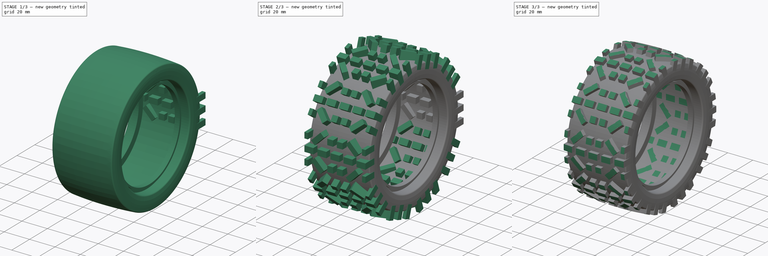
[diagram: build sequence overview — one tinted view per stage of 3, left to right]
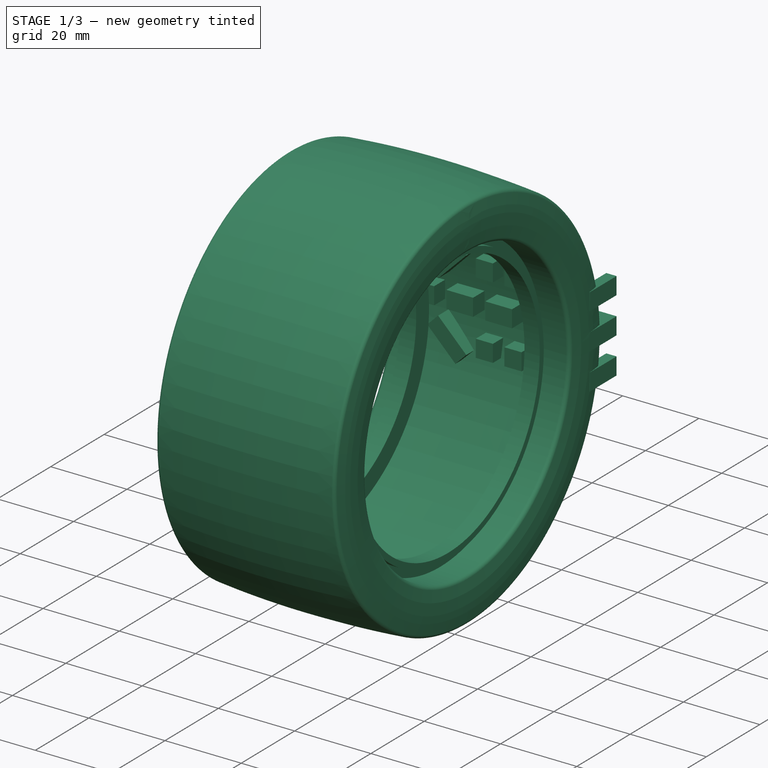
[diagram: stage 1 of 3 — iso view after this stage's code; geometry added in this stage tinted green]
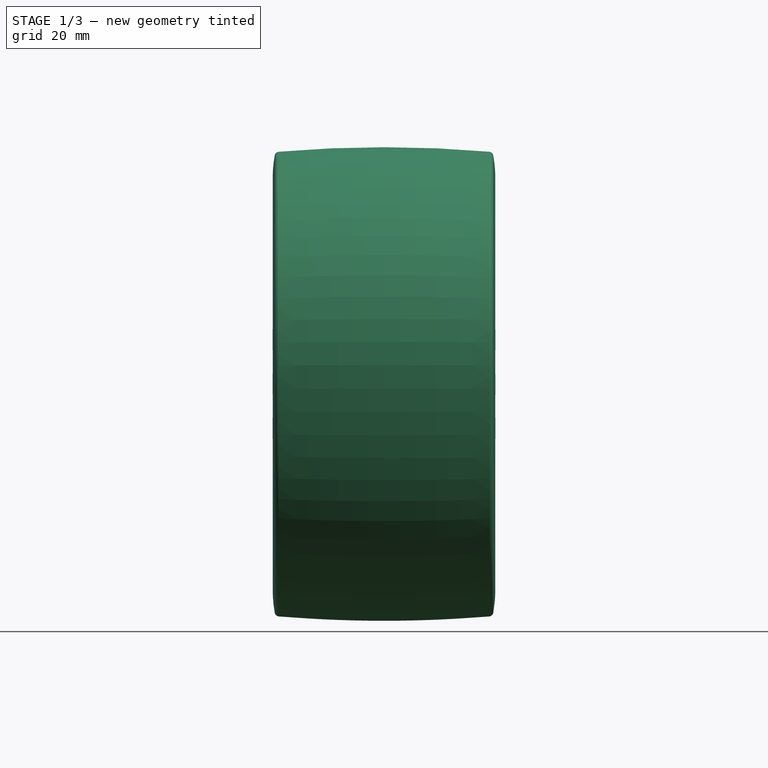
[diagram: stage 1 of 3 — front view after this stage's code; geometry added in this stage tinted green]
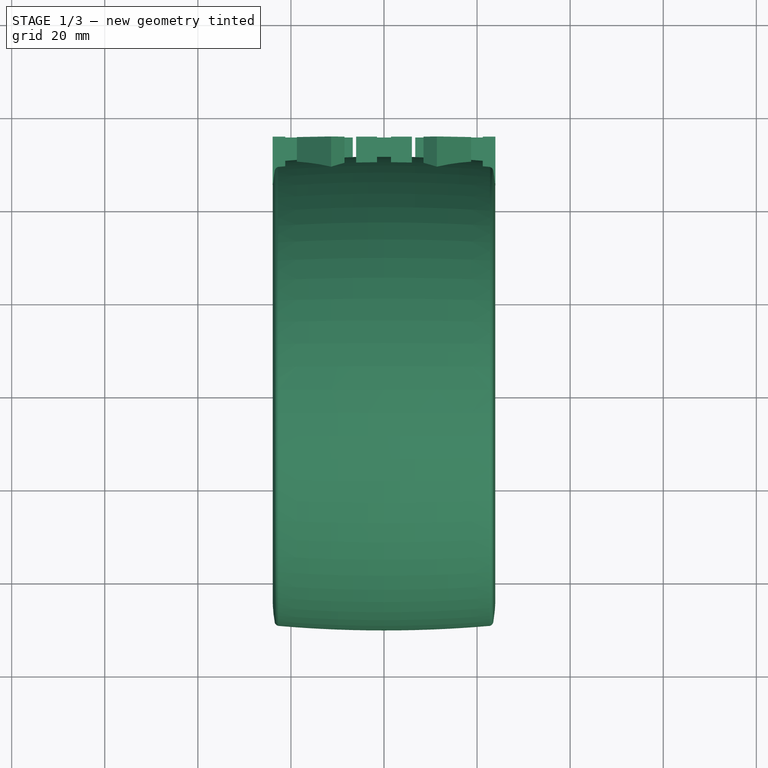
[diagram: stage 1 of 3 — top view after this stage's code; geometry added in this stage tinted green]
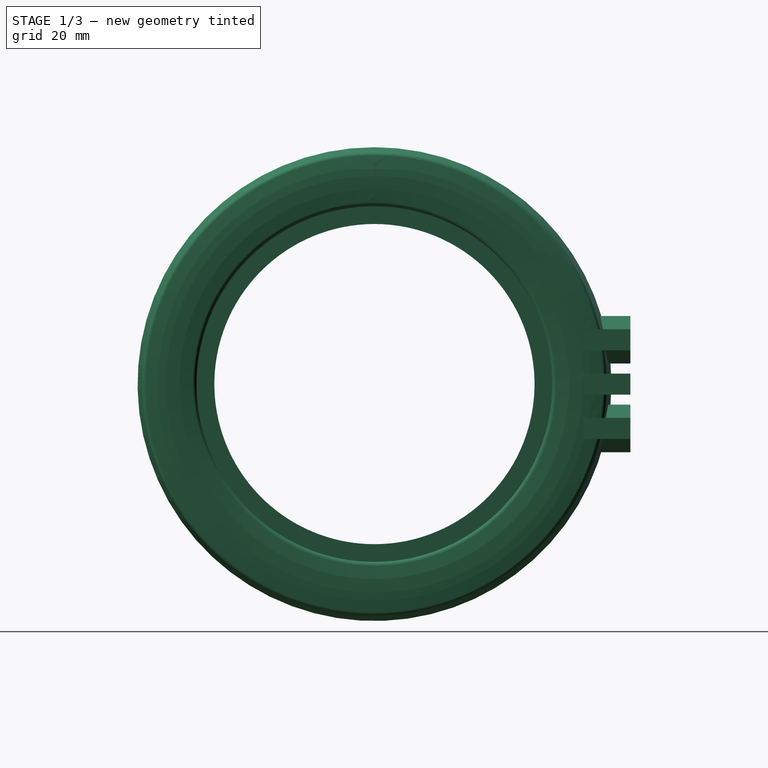
[diagram: stage 1 of 3 — right view after this stage's code; geometry added in this stage tinted green]
FCSTD DOCUMENT  (FreeCAD 0.17R13543 (Git))
Label: Razr
License: CreativeCommons Attribution-NonCommercial-ShareAlike
LicenseURL: http://creativecommons.org/licenses/by-nc-sa/4.0/
objects: Sketcher::SketchObject×4, PartDesign::Groove×2, PartDesign::Revolution×1, PartDesign::Pad×1, PartDesign::PolarPattern×1, PartDesign::Body×1
note: 14 computed .brp shape members not serialized (recipe doc carries the construction recipe); baked Part::Feature solids carry a one-line shape summary decoded from their .brp

FEATURE [Sketcher::SketchObject] Sketch
  MapMode = 5
  Placement = pos=(0,0,0) rot=(1,0,0;1.5708rad)
  Support = -> [XZ_Plane]
  sketch-geometry (31):
    g0: LineSegment StartX=-14.2 StartY=34.4 StartZ=0 EndX=-18.2 EndY=34.4 EndZ=0
    g1: LineSegment StartX=-18.2 StartY=34.4 StartZ=0 EndX=-18.2 EndY=35.9 EndZ=0
    g2: LineSegment StartX=-18.2 StartY=35.9 StartZ=0 EndX=-16.2 EndY=35.9 EndZ=0
    g3: LineSegment StartX=-16.2 StartY=35.9 StartZ=0 EndX=-16.2 EndY=38.2 EndZ=0
    g4: LineSegment StartX=-22.5 StartY=38.2 StartZ=0 EndX=-16.2 EndY=38.2 EndZ=0
    g5: LineSegment StartX=14.2 StartY=39.2 StartZ=0 EndX=14.2 EndY=34.4 EndZ=0
    g6: LineSegment StartX=14.2 StartY=34.4 StartZ=0 EndX=18.2 EndY=34.4 EndZ=0
    g7: LineSegment StartX=18.2 StartY=34.4 StartZ=0 EndX=18.2 EndY=35.9 EndZ=0
    g8: LineSegment StartX=18.2 StartY=35.9 StartZ=0 EndX=16.2 EndY=35.9 EndZ=0
    g9: LineSegment StartX=16.2 StartY=35.9 StartZ=0 EndX=16.2 EndY=38.2 EndZ=0
    g10: LineSegment StartX=16.2 StartY=38.2 StartZ=0 EndX=22.5 EndY=38.2 EndZ=0
    g11: ArcOfCircle CenterX=22.5 CenterY=39.2 CenterZ=0 NormalX=0 NormalY=0 NormalZ=1 AngleXU=0 Radius=1 StartAngle=4.71239 EndAngle=6.10867
    g12: ArcOfCircle CenterX=5.06044 CenterY=44.0596 CenterZ=0 NormalX=0 NormalY=0 NormalZ=1 AngleXU=0 Radius=28.9856 StartAngle=2.96939 EndAngle=3.31613
    g13: ArcOfCircle CenterX=0 CenterY=-213.025 CenterZ=0 NormalX=0 NormalY=0 NormalZ=1 AngleXU=0 Radius=263.925 StartAngle=1.48478 EndAngle=1.65681
    g14: ArcOfCircle CenterX=-22.5 CenterY=39.2 CenterZ=0 NormalX=0 NormalY=0 NormalZ=1 AngleXU=0 Radius=1 StartAngle=3.31613 EndAngle=4.71239
    g15: LineSegment [constr] StartX=-22.5 StartY=39.2 StartZ=0 EndX=-22.5 EndY=38.2 EndZ=0
    g16: LineSegment [constr] StartX=-23.4848 StartY=39.0264 StartZ=0 EndX=5.06044 EndY=44.0596 EndZ=0
    g17: LineSegment StartX=-14.2 StartY=34.4 StartZ=0 EndX=-14.2 EndY=39.2 EndZ=0
    g18: ArcOfCircle CenterX=-22.5 CenterY=48.9392 CenterZ=0 NormalX=0 NormalY=0 NormalZ=1 AngleXU=0 Radius=1.00028 StartAngle=1.74533 EndAngle=3.05433
    g19: GeomPoint X=0 Y=50.9 Z=0
    g20: LineSegment [constr] StartX=-22.5 StartY=48.9392 StartZ=0 EndX=-23.4965 EndY=49.0264 EndZ=0
    g21: LineSegment [constr] StartX=-22.5 StartY=48.9392 StartZ=0 EndX=-22.6737 EndY=49.9243 EndZ=0
    g22: LineSegment [constr] StartX=-22.5 StartY=48.9392 StartZ=0 EndX=-22.5 EndY=49.9392 EndZ=0
    g23: ArcOfCircle CenterX=22.5 CenterY=48.9392 CenterZ=0 NormalX=0 NormalY=0 NormalZ=1 AngleXU=0 Radius=1.00028 StartAngle=0.0872665 EndAngle=1.39626
    g24: ArcOfCircle CenterX=-5.06044 CenterY=44.0596 CenterZ=0 NormalX=0 NormalY=0 NormalZ=1 AngleXU=0 Radius=28.9856 StartAngle=6.10865 EndAngle=6.45539
    g25: ArcOfCircle CenterX=0 CenterY=-477.416 CenterZ=0 NormalX=0 NormalY=0 NormalZ=1 AngleXU=0 Radius=526.816 StartAngle=1.52807 EndAngle=1.61352
    g26: GeomPoint X=0 Y=49.4 Z=0
    g27: ArcOfCircle CenterX=-6.56044 CenterY=44.0596 CenterZ=0 NormalX=0 NormalY=0 NormalZ=1 AngleXU=0 Radius=29.464 StartAngle=6.11749 EndAngle=6.44888
    g28: LineSegment StartX=22.5 StartY=39.2 StartZ=0 EndX=14.2 EndY=39.2 EndZ=0
    g29: LineSegment StartX=-14.2 StartY=39.2 StartZ=0 EndX=-22.5 EndY=39.2 EndZ=0
    g30: ArcOfCircle CenterX=5.06044 CenterY=44.0596 CenterZ=0 NormalX=0 NormalY=0 NormalZ=1 AngleXU=0 Radius=27.9856 StartAngle=2.96706 EndAngle=3.31613
  constraints (89):
    c: Horizontal(g0)
    c: Coincident(g1,g0)
    c: Vertical(g1)
    c: Coincident(g2,g1)
    c: Horizontal(g2)
    c: Coincident(g3,g2)
    c: Horizontal(g4)
    c: DistanceY(g1,g1) = 1.5
    c: DistanceX(g2,g2) = 2
    c: DistanceY(g3,g3) = 2.3
    c: DistanceX(g2,g0) = 2
    c: DistanceX(g4,g4) = 6.3
    c: DistanceY(g-1,g0) = 34.4
    c: DistanceX(g0,g-1) = 14.2
    c: Symmetric(g5,g17,g-2)
    c: Vertical(g5)
    c: Coincident(g6,g5)
    c: Horizontal(g6)
    c: Coincident(g7,g6)
    c: Coincident(g8,g7)
    c: Horizontal(g8)
    c: Coincident(g9,g8)
    c: Vertical(g9)
    c: Coincident(g10,g9)
    c: Horizontal(g10)
    c: Vertical(g7)
    c: Symmetric(g6,g0,g-2)
    c: Symmetric(g8,g2,g-2)
    c: Symmetric(g9,g3,g-2)
    c: Coincident(g11,g10)
    c: Vertical(g11,g10)
    c: Symmetric(g10,g4,g-2)
    c: DistanceY(g12,g12) = 10
    c: PointOnObject(g13,g-2)
    c: Coincident(g14,g12)
    c: Coincident(g14,g4)
    c: Coincident(g15,g14)
    c: Coincident(g15,g4)
    c: Vertical(g15)
    c: DistanceY(g15,g15) = 1
    c: Coincident(g16,g12)
    c: PointOnObject(g14,g16)
    c: Angle(g15,g16,g14) = 1.74533
    c: Coincident(g17,g0)
    c: Vertical(g17)
    c: Coincident(g18,g12)
    c: PointOnObject(g19,g-2)
    c: PointOnObject(g19,g13)
    c: DistanceY(g4,g19) = 12.7
    c: Coincident(g18,g13)
    c: Coincident(g20,g18)
    c: Coincident(g20,g12)
    c: Coincident(g21,g18)
    c: Coincident(g21,g13)
    c: Coincident(g22,g18)
    c: PointOnObject(g22,g13)
    c: Vertical(g22)
    c: Angle(g22,g21) = 0.174533
    c: Angle(g21,g20) = 1.309
    c: Vertical(g18,g14)
    c: DistanceY(g22,g22) = 1
    c: Coincident(g12,g16)
    c: Symmetric(g13,g13,g-2)
    c: Coincident(g3,g4)
    c: Coincident(g23,g13)
    c: Symmetric(g23,g18,g-2)
    c: Symmetric(g13,g13,g-2)
    c: Symmetric(g12,g23,g-2)
    c: Coincident(g24,g23)
    c: Coincident(g24,g11)
    c: Symmetric(g24,g12,g-2)
    c: PointOnObject(g25,g-2)
    c: PointOnObject(g26,g-2)
    c: PointOnObject(g26,g25)
    c: DistanceY(g26,g19) = 1.5
    c: Symmetric(g25,g25,g-2)
    c: Coincident(g27,g25)
    c: Coincident(g27,g11)
    c: Horizontal(g24,g27)
    c: DistanceX(g27,g24) = 1.5
    c: Coincident(g28,g11)
    c: Coincident(g28,g5)
    c: Horizontal(g28)
    c: Coincident(g29,g17)
    c: Coincident(g29,g14)
    c: Horizontal(g29)
    c: Coincident(g30,g14)
    c: Coincident(g30,g25)
    c: Symmetric(g30,g24,g-2)
FEATURE [PartDesign::Revolution] Revolution
  Angle = 360
  Axis = (1,0,0)
  Base = (0,0,0)
  Placement = pos=(0,0,0) rot=(1,0,0;1.5708rad)
  Profile = -> Sketch
  ReferenceAxis = -> X_Axis
FEATURE [Sketcher::SketchObject] Sketch003
  ExternalGeometry = -> [Sketch]
  MapMode = 5
  Placement = pos=(0,0,0) rot=(1,0,0;1.5708rad)
  Support = -> [XZ_Plane]
  sketch-geometry (4):
    g0: LineSegment StartX=-22.5 StartY=39.2 StartZ=0 EndX=22.5 EndY=39.2 EndZ=0
    g1: ArcOfCircle CenterX=5.06044 CenterY=44.0596 CenterZ=0 NormalX=0 NormalY=0 NormalZ=1 AngleXU=0 Radius=27.9856 StartAngle=2.96706 EndAngle=3.31613
    g2: ArcOfCircle CenterX=-6.56044 CenterY=44.0596 CenterZ=0 NormalX=0 NormalY=0 NormalZ=1 AngleXU=0 Radius=29.464 StartAngle=6.11749 EndAngle=6.44888
    g3: ArcOfCircle CenterX=3e-12 CenterY=-477.416 CenterZ=0 NormalX=0 NormalY=0 NormalZ=1 AngleXU=0 Radius=526.816 StartAngle=1.52807 EndAngle=1.61352
  constraints (11):
    c: Coincident(g0,g-3)
    c: Coincident(g0,g-5)
    c: Coincident(g1,g-3)
    c: Coincident(g1,g0)
    c: Coincident(g1,g-4)
    c: Coincident(g2,g-5)
    c: Coincident(g2,g0)
    c: Coincident(g2,g-5)
    c: Coincident(g3,g1)
    c: Coincident(g3,g2)
    c: Tangent(g3,g-4)
FEATURE [Sketcher::SketchObject] Sketch002
  ExternalGeometry = -> [Sketch]
  MapMode = 5
  Placement = pos=(0,0,0) rot=(1,0,0;1.5708rad)
  Support = -> [XZ_Plane]
  sketch-geometry (8):
    g0: ArcOfCircle CenterX=0 CenterY=-210.025 CenterZ=0 NormalX=0 NormalY=0 NormalZ=1 AngleXU=0 Radius=263.925 StartAngle=1.47337 EndAngle=1.66823
    g1: GeomPoint X=0 Y=50.9 Z=0
    g2: GeomPoint X=0 Y=53.9 Z=0
    g3: GeomPoint X=22.6737 Y=52.9243 Z=0
    g4: LineSegment StartX=-25.6737 StartY=52.6483 StartZ=0 EndX=-25.6737 EndY=58.9 EndZ=0
    g5: LineSegment StartX=-25.6737 StartY=58.9 StartZ=0 EndX=25.6737 EndY=58.9 EndZ=0
    g6: LineSegment StartX=25.6737 StartY=58.9 StartZ=0 EndX=25.6737 EndY=52.6483 EndZ=0
    g7: GeomPoint X=0 Y=58.9 Z=0
  constraints (20):
    c: PointOnObject(g1,g-3)
    c: PointOnObject(g2,g0)
    c: PointOnObject(g2,g-2)
    c: PointOnObject(g1,g-2)
    c: DistanceY(g1,g2) = 3
    c: Symmetric(g0,g0,g-2)
    c: PointOnObject(g3,g0)
    c: Vertical(g-3,g3)
    c: DistanceY(g-3,g3) = 3
    c: Coincident(g4,g0)
    c: Vertical(g4)
    c: Coincident(g5,g4)
    c: Horizontal(g5)
    c: Coincident(g6,g5)
    c: Coincident(g6,g0)
    c: Vertical(g6)
    c: PointOnObject(g7,g5)
    c: PointOnObject(g7,g-2)
    c: DistanceY(g2,g7) = 5
    c: DistanceX(g3,g0) = 3
FEATURE [Sketcher::SketchObject] Sketch004
  ExternalGeometry = -> [Sketch]
  MapMode = 2
  Placement = pos=(0,45,0) rot=(-1,0,0;4.71239rad)
  sketch-geometry (77):
    g0: LineSegment [constr] StartX=-23.9252 StartY=-39844.3 StartZ=0 EndX=-23.9252 EndY=39844.3 EndZ=0
    g1: LineSegment [constr] StartX=23.9252 StartY=-39844.3 StartZ=0 EndX=23.9252 EndY=39844.3 EndZ=0
    g2: LineSegment StartX=-23.9252 StartY=2.26258 StartZ=0 EndX=-16.9252 EndY=2.26258 EndZ=0
    g3: LineSegment StartX=-16.9252 StartY=2.26258 StartZ=0 EndX=-16.9252 EndY=-2.26258 EndZ=0
    g4: LineSegment StartX=-16.9252 StartY=-2.26258 StartZ=0 EndX=-23.9252 EndY=-2.26258 EndZ=0
    g5: LineSegment StartX=-23.9252 StartY=-2.26258 StartZ=0 EndX=-23.9252 EndY=2.26258 EndZ=0
    g6: LineSegment [constr] StartX=-16.9252 StartY=-2.26258 StartZ=0 EndX=-13.7126 EndY=-2.26258 EndZ=0
    g7: LineSegment StartX=-13.7126 StartY=-2.26258 StartZ=0 EndX=-6.71258 EndY=-2.26258 EndZ=0
    g8: LineSegment StartX=-6.71258 StartY=-2.26258 StartZ=0 EndX=-6.71258 EndY=2.26258 EndZ=0
    g9: LineSegment StartX=-6.71258 StartY=2.26258 StartZ=0 EndX=-13.7126 EndY=2.26258 EndZ=0
    g10: LineSegment StartX=-13.7126 StartY=2.26258 StartZ=0 EndX=-13.7126 EndY=-2.26258 EndZ=0
    g11: LineSegment StartX=-3.5 StartY=-2.26258 StartZ=0 EndX=3.5 EndY=-2.26258 EndZ=0
    g12: LineSegment StartX=3.5 StartY=-2.26258 StartZ=0 EndX=3.5 EndY=2.26258 EndZ=0
    g13: LineSegment StartX=3.5 StartY=2.26258 StartZ=0 EndX=-3.5 EndY=2.26258 EndZ=0
    g14: LineSegment StartX=-3.5 StartY=2.26258 StartZ=0 EndX=-3.5 EndY=-2.26258 EndZ=0
    g15: LineSegment StartX=6.71258 StartY=-2.26258 StartZ=0 EndX=13.7126 EndY=-2.26258 EndZ=0
    g16: LineSegment StartX=13.7126 StartY=-2.26258 StartZ=0 EndX=13.7126 EndY=2.26258 EndZ=0
    g17: LineSegment StartX=13.7126 StartY=2.26258 StartZ=0 EndX=6.71258 EndY=2.26258 EndZ=0
    g18: LineSegment StartX=6.71258 StartY=2.26258 StartZ=0 EndX=6.71258 EndY=-2.26258 EndZ=0
    g19: LineSegment StartX=16.9252 StartY=-2.26258 StartZ=0 EndX=23.9252 EndY=-2.26258 EndZ=0
    g20: LineSegment StartX=23.9252 StartY=-2.26258 StartZ=0 EndX=23.9252 EndY=2.26258 EndZ=0
    g21: LineSegment StartX=23.9252 StartY=2.26258 StartZ=0 EndX=16.9252 EndY=2.26258 EndZ=0
    g22: LineSegment StartX=16.9252 StartY=2.26258 StartZ=0 EndX=16.9252 EndY=-2.26258 EndZ=0
    g23: LineSegment [constr] StartX=-6.71258 StartY=-2.26258 StartZ=0 EndX=-3.5 EndY=-2.26258 EndZ=0
    g24: LineSegment [constr] StartX=3.5 StartY=-2.26258 StartZ=0 EndX=6.71258 EndY=-2.26258 EndZ=0
    g25: LineSegment [constr] StartX=13.7126 StartY=-2.26258 StartZ=0 EndX=16.9252 EndY=-2.26258 EndZ=0
    g26: LineSegment [constr] StartX=-23.9252 StartY=7.26258 StartZ=0 EndX=23.9252 EndY=7.26258 EndZ=0
    g27: LineSegment StartX=-6 StartY=7.26258 StartZ=0 EndX=-1.5 EndY=7.26258 EndZ=0
    g28: LineSegment StartX=-1.5 StartY=7.26258 StartZ=0 EndX=-1.5 EndY=11.7877 EndZ=0
    g29: LineSegment StartX=-1.5 StartY=11.7877 StartZ=0 EndX=-6 EndY=11.7877 EndZ=0
    g30: LineSegment StartX=-6 StartY=11.7877 StartZ=0 EndX=-6 EndY=7.26258 EndZ=0
    g31: LineSegment StartX=1.5 StartY=7.26258 StartZ=0 EndX=6 EndY=7.26258 EndZ=0
    g32: LineSegment StartX=6 StartY=7.26258 StartZ=0 EndX=6 EndY=11.7877 EndZ=0
    g33: LineSegment StartX=6 StartY=11.7877 StartZ=0 EndX=1.5 EndY=11.7877 EndZ=0
    g34: LineSegment StartX=1.5 StartY=11.7877 StartZ=0 EndX=1.5 EndY=7.26258 EndZ=0
    g35: LineSegment StartX=-18.7252 StartY=7.26258 StartZ=0 EndX=-11.35 EndY=14.6377 EndZ=0
    g36: LineSegment StartX=-11.35 StartY=14.6377 StartZ=0 EndX=-8.5 EndY=11.7877 EndZ=0
    g37: LineSegment StartX=-8.5 StartY=11.7877 StartZ=0 EndX=-15.8752 EndY=4.41258 EndZ=0
    g38: LineSegment StartX=-18.7252 StartY=7.26258 StartZ=0 EndX=-15.8752 EndY=4.41258 EndZ=0
    g39: LineSegment StartX=-23.9252 StartY=7.26258 StartZ=0 EndX=-21.2252 EndY=7.26258 EndZ=0
    g40: LineSegment StartX=-21.2252 StartY=7.26258 StartZ=0 EndX=-21.2252 EndY=11.7877 EndZ=0
    g41: LineSegment StartX=-21.2252 StartY=11.7877 StartZ=0 EndX=-23.9252 EndY=11.7877 EndZ=0
    g42: LineSegment StartX=-23.9252 StartY=11.7877 StartZ=0 EndX=-23.9252 EndY=7.26258 EndZ=0
    g43: LineSegment [constr] StartX=-15.8752 StartY=4.41258 StartZ=0 EndX=-15.8752 EndY=7.26258 EndZ=0
    g44: LineSegment StartX=21.2252 StartY=7.26258 StartZ=0 EndX=23.9252 EndY=7.26258 EndZ=0
    g45: LineSegment StartX=23.9252 StartY=7.26258 StartZ=0 EndX=23.9252 EndY=11.7877 EndZ=0
    g46: LineSegment StartX=23.9252 StartY=11.7877 StartZ=0 EndX=21.2252 EndY=11.7877 EndZ=0
    g47: LineSegment StartX=21.2252 StartY=11.7877 StartZ=0 EndX=21.2252 EndY=7.26258 EndZ=0
    g48: LineSegment StartX=18.7252 StartY=7.26258 StartZ=0 EndX=11.35 EndY=14.6377 EndZ=0
    g49: LineSegment StartX=11.35 StartY=14.6377 StartZ=0 EndX=8.5 EndY=11.7877 EndZ=0
    g50: LineSegment StartX=8.5 StartY=11.7877 StartZ=0 EndX=15.8752 EndY=4.41258 EndZ=0
    g51: LineSegment StartX=15.8752 StartY=4.41258 StartZ=0 EndX=18.7252 EndY=7.26258 EndZ=0
    g52: LineSegment [constr] StartX=-23.9252 StartY=-7.26258 StartZ=0 EndX=23.9252 EndY=-7.26258 EndZ=0
    g53: LineSegment StartX=-23.9252 StartY=-7.26258 StartZ=0 EndX=-21.2252 EndY=-7.26258 EndZ=0
    g54: LineSegment StartX=-21.2252 StartY=-7.26258 StartZ=0 EndX=-21.2252 EndY=-11.7877 EndZ=0
    g55: LineSegment StartX=-21.2252 StartY=-11.7877 StartZ=0 EndX=-23.9252 EndY=-11.7877 EndZ=0
    g56: LineSegment StartX=-23.9252 StartY=-11.7877 StartZ=0 EndX=-23.9252 EndY=-7.26258 EndZ=0
    g57: LineSegment StartX=-18.7252 StartY=-7.26258 StartZ=0 EndX=-11.35 EndY=-14.6377 EndZ=0
    g58: LineSegment StartX=-11.35 StartY=-14.6377 StartZ=0 EndX=-8.5 EndY=-11.7877 EndZ=0
    g59: LineSegment StartX=-8.5 StartY=-11.7877 StartZ=0 EndX=-15.8752 EndY=-4.41258 EndZ=0
    g60: LineSegment StartX=-15.8752 StartY=-4.41258 StartZ=0 EndX=-18.7252 EndY=-7.26258 EndZ=0
    g61: LineSegment StartX=-6 StartY=-7.26258 StartZ=0 EndX=-1.5 EndY=-7.26258 EndZ=0
    g62: LineSegment StartX=-1.5 StartY=-7.26258 StartZ=0 EndX=-1.5 EndY=-11.7877 EndZ=0
    g63: LineSegment StartX=-1.5 StartY=-11.7877 StartZ=0 EndX=-6 EndY=-11.7877 EndZ=0
    g64: LineSegment StartX=-6 StartY=-11.7877 StartZ=0 EndX=-6 EndY=-7.26258 EndZ=0
    g65: LineSegment StartX=1.5 StartY=-7.26258 StartZ=0 EndX=6 EndY=-7.26258 EndZ=0
    g66: LineSegment StartX=6 StartY=-7.26258 StartZ=0 EndX=6 EndY=-11.7877 EndZ=0
    g67: LineSegment StartX=6 StartY=-11.7877 StartZ=0 EndX=1.5 EndY=-11.7877 EndZ=0
    g68: LineSegment StartX=1.5 StartY=-11.7877 StartZ=0 EndX=1.5 EndY=-7.26258 EndZ=0
    g69: LineSegment StartX=15.8752 StartY=-4.41258 StartZ=0 EndX=18.7252 EndY=-7.26258 EndZ=0
    g70: LineSegment StartX=18.7252 StartY=-7.26258 StartZ=0 EndX=11.35 EndY=-14.6377 EndZ=0
    g71: LineSegment StartX=11.35 StartY=-14.6377 StartZ=0 EndX=8.5 EndY=-11.7877 EndZ=0
    g72: LineSegment StartX=8.5 StartY=-11.7877 StartZ=0 EndX=15.8752 EndY=-4.41258 EndZ=0
    g73: LineSegment StartX=21.2252 StartY=-7.26258 StartZ=0 EndX=23.9252 EndY=-7.26258 EndZ=0
    g74: LineSegment StartX=23.9252 StartY=-7.26258 StartZ=0 EndX=23.9252 EndY=-11.7877 EndZ=0
    g75: LineSegment StartX=23.9252 StartY=-11.7877 StartZ=0 EndX=21.2252 EndY=-11.7877 EndZ=0
    g76: LineSegment StartX=21.2252 StartY=-11.7877 StartZ=0 EndX=21.2252 EndY=-7.26258 EndZ=0
  constraints (213):
    c: Tangent(g0,g-3)
    c: Symmetric(g1,g0,g-2)
    c: Symmetric(g0,g1,g-2)
    c: Symmetric(g0,g0,g-1)
    c: Coincident(g2,g3)
    c: Coincident(g3,g4)
    c: Coincident(g4,g5)
    c: Coincident(g5,g2)
    c: Horizontal(g2)
    c: Horizontal(g4)
    c: Vertical(g3)
    c: Vertical(g5)
    c: PointOnObject(g2,g0)
    c: Coincident(g6,g3)
    c: Horizontal(g6)
    c: Coincident(g7,g8)
    c: Coincident(g8,g9)
    c: Coincident(g9,g10)
    c: Coincident(g10,g7)
    c: Horizontal(g7)
    c: Horizontal(g9)
    c: Vertical(g8)
    c: Vertical(g10)
    c: Coincident(g7,g6)
    c: Coincident(g11,g12)
    c: Coincident(g12,g13)
    c: Coincident(g13,g14)
    c: Coincident(g14,g11)
    c: Horizontal(g11)
    c: Horizontal(g13)
    c: Vertical(g12)
    c: Vertical(g14)
    c: Coincident(g15,g16)
    c: Coincident(g16,g17)
    c: Coincident(g17,g18)
    c: Coincident(g18,g15)
    c: Horizontal(g15)
    c: Horizontal(g17)
    c: Vertical(g16)
    c: Vertical(g18)
    c: Coincident(g19,g20)
    c: Coincident(g20,g21)
    c: Coincident(g21,g22)
    c: Coincident(g22,g19)
    c: Horizontal(g19)
    c: Horizontal(g21)
    c: Vertical(g20)
    c: Vertical(g22)
    c: PointOnObject(g20,g1)
    c: Coincident(g23,g7)
    c: Coincident(g23,g11)
    c: Horizontal(g23)
    c: Coincident(g24,g11)
    c: Horizontal(g24)
    c: Coincident(g25,g15)
    c: Coincident(g25,g19)
    c: Horizontal(g25)
    c: Equal(g6,g23)
    c: Equal(g23,g24)
    c: Equal(g24,g25)
    c: Equal(g5,g10)
    c: Equal(g10,g8)
    c: Equal(g8,g14)
    c: Equal(g14,g18)
    c: Equal(g18,g22)
    c: Coincident(g24,g15)
    c: Equal(g7,g11)
    c: Equal(g11,g15)
    c: Equal(g15,g19)
    c: Equal(g19,g4)
    c: PointOnObject(g26,g0)
    c: Coincident(g27,g28)
    c: Coincident(g28,g29)
    c: Coincident(g29,g30)
    c: Coincident(g30,g27)
    c: Horizontal(g27)
    c: Horizontal(g29)
    c: Vertical(g28)
    c: Vertical(g30)
    c: PointOnObject(g27,g26)
    c: Coincident(g31,g32)
    c: Coincident(g32,g33)
    c: Coincident(g33,g34)
    c: Coincident(g34,g31)
    c: Horizontal(g31)
    c: Horizontal(g33)
    c: Vertical(g32)
    c: Vertical(g34)
    c: PointOnObject(g31,g26)
    c: Symmetric(g31,g27,g-2)
    c: Symmetric(g28,g33,g-2)
    c: PointOnObject(g35,g26)
    c: Coincident(g36,g35)
    c: Coincident(g37,g36)
    c: Coincident(g38,g35)
    c: Coincident(g38,g37)
    c: Perpendicular(g35,g38)
    c: Parallel(g38,g36)
    c: Parallel(g35,g37)
    c: Angle(g26,g35) = 0.785398
    c: Horizontal(g36,g29)
    c: Equal(g5,g30)
    c: DistanceX(g27,g27) = 4.5
    c: DistanceX(g27,g31) = 3
    c: DistanceX(g36,g29) = 2.5
    c: Coincident(g39,g40)
    c: Coincident(g40,g41)
    c: Coincident(g41,g42)
    c: Coincident(g42,g39)
    c: Horizontal(g39)
    c: Horizontal(g41)
    c: Vertical(g40)
    c: Vertical(g42)
    c: Coincident(g39,g26)
    c: Horizontal(g40,g36)
    c: DistanceX(g39,g35) = 2.5
    c: Coincident(g43,g37)
    c: Vertical(g43)
    c: DistanceY(g43,g43) = 2.85
    c: PointOnObject(g43,g26)
    c: Coincident(g44,g45)
    c: Coincident(g45,g46)
    c: Coincident(g46,g47)
    c: Coincident(g47,g44)
    c: Horizontal(g44)
    c: Horizontal(g46)
    c: Vertical(g45)
    c: Vertical(g47)
    c: PointOnObject(g44,g26)
    c: PointOnObject(g45,g1)
    c: PointOnObject(g48,g26)
    c: Coincident(g49,g48)
    c: Coincident(g50,g49)
    c: Coincident(g51,g50)
    c: Coincident(g51,g48)
    c: Symmetric(g48,g35,g-2)
    c: Symmetric(g50,g37,g-2)
    c: Symmetric(g36,g49,g-2)
    c: Symmetric(g35,g48,g-2)
    c: DistanceY(g2,g26) = 5
    c: PointOnObject(g26,g1)
    c: PointOnObject(g52,g0)
    c: PointOnObject(g52,g1)
    c: DistanceY(g52,g4) = 5
    c: Coincident(g53,g54)
    c: Coincident(g54,g55)
    c: Coincident(g55,g56)
    c: Coincident(g56,g53)
    c: Horizontal(g53)
    c: Horizontal(g55)
    c: Vertical(g54)
    c: Vertical(g56)
    c: Coincident(g53,g52)
    c: Equal(g54,g40)
    c: Equal(g55,g39)
    c: Coincident(g58,g57)
    c: Coincident(g59,g58)
    c: Coincident(g60,g59)
    c: Coincident(g60,g57)
    c: Equal(g60,g38)
    c: Equal(g59,g37)
    c: Perpendicular(g60,g59)
    c: Parallel(g57,g59)
    c: Parallel(g60,g58)
    c: PointOnObject(g57,g52)
    c: Angle(g52,g60) = 0.785398
    c: DistanceX(g53,g57) = 2.5
    c: Coincident(g61,g62)
    c: Coincident(g62,g63)
    c: Coincident(g63,g64)
    c: Coincident(g64,g61)
    c: Horizontal(g61)
    c: Horizontal(g63)
    c: Vertical(g62)
    c: Vertical(g64)
    c: Coincident(g65,g66)
    c: Coincident(g66,g67)
    c: Coincident(g67,g68)
    c: Coincident(g68,g65)
    c: Horizontal(g65)
    c: Horizontal(g67)
    c: Vertical(g66)
    c: Vertical(g68)
    c: PointOnObject(g65,g52)
    c: Symmetric(g66,g63,g-2)
    c: Symmetric(g61,g65,g-2)
    c: DistanceX(g62,g67) = 3
    c: Equal(g63,g27)
    c: Equal(g62,g28)
    c: DistanceX(g58,g63) = 2.5
    c: PointOnObject(g69,g52)
    c: Coincident(g69,g70)
    c: Coincident(g70,g71)
    c: Coincident(g71,g72)
    c: Coincident(g72,g69)
    c: Symmetric(g70,g57,g-2)
    c: Symmetric(g58,g71,g-2)
    c: Symmetric(g59,g69,g-2)
    c: Symmetric(g57,g69,g-2)
    c: Coincident(g73,g74)
    c: Coincident(g74,g75)
    c: Coincident(g75,g76)
    c: Coincident(g76,g73)
    c: Horizontal(g73)
    c: Horizontal(g75)
    c: Vertical(g74)
    c: Vertical(g76)
    c: PointOnObject(g73,g52)
    c: PointOnObject(g74,g1)
    c: Symmetric(g54,g75,g-2)
    c: Symmetric(g46,g40,g-2)
    c: DistanceX(g41,g41) = 2.7
    c: Symmetric(g57,g35,g-1)
FEATURE [PartDesign::Pad] Pad
  BaseFeature = -> Revolution
  Length = 10
  Length2 = 100
  Placement = pos=(0,0,0) rot=(1,0,0;1.5708rad)
  Profile = -> Sketch004
  Reversed = true
  Type = 0
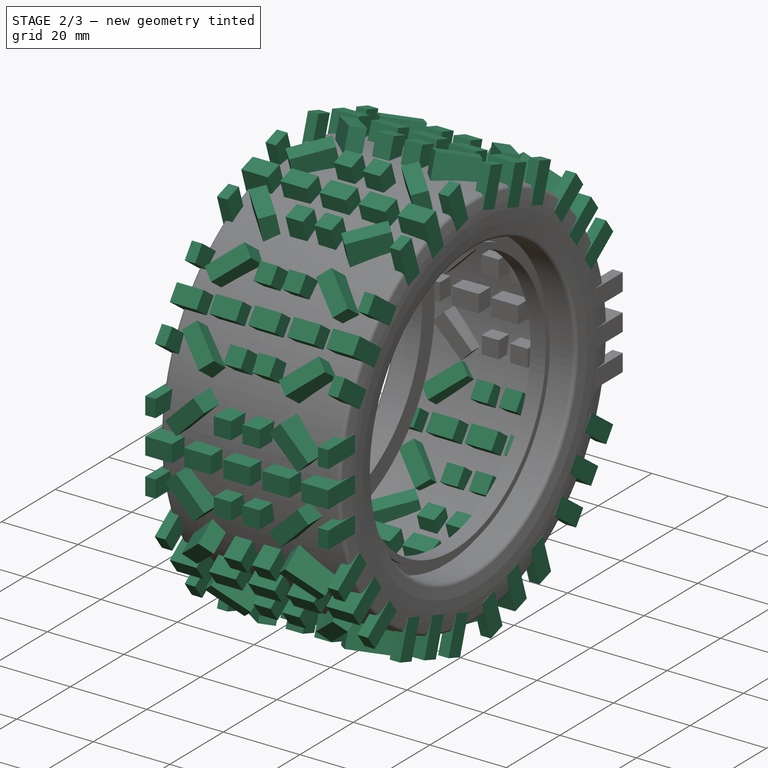
[diagram: stage 2 of 3 — iso view after this stage's code; geometry added in this stage tinted green]
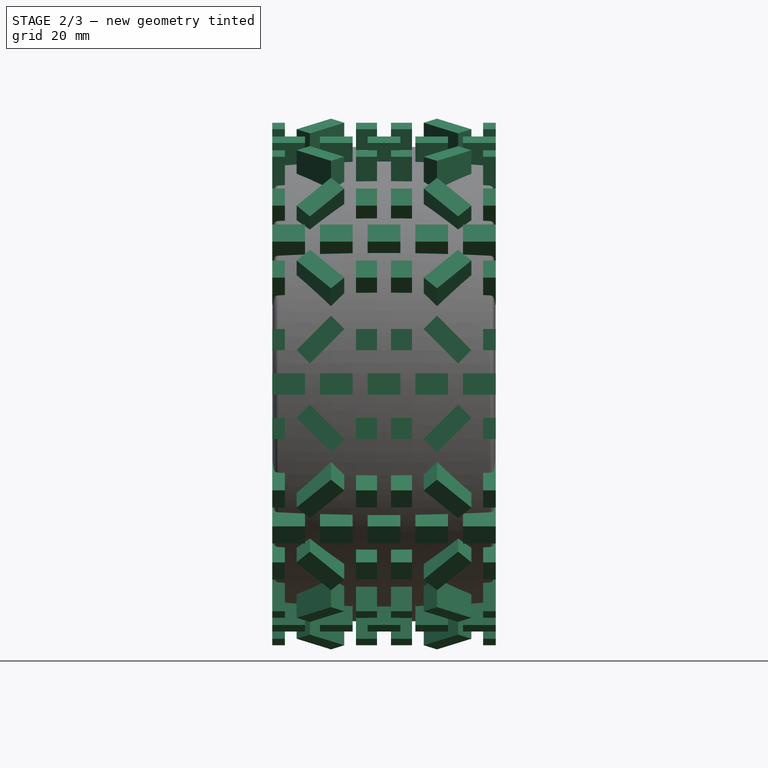
[diagram: stage 2 of 3 — front view after this stage's code; geometry added in this stage tinted green]
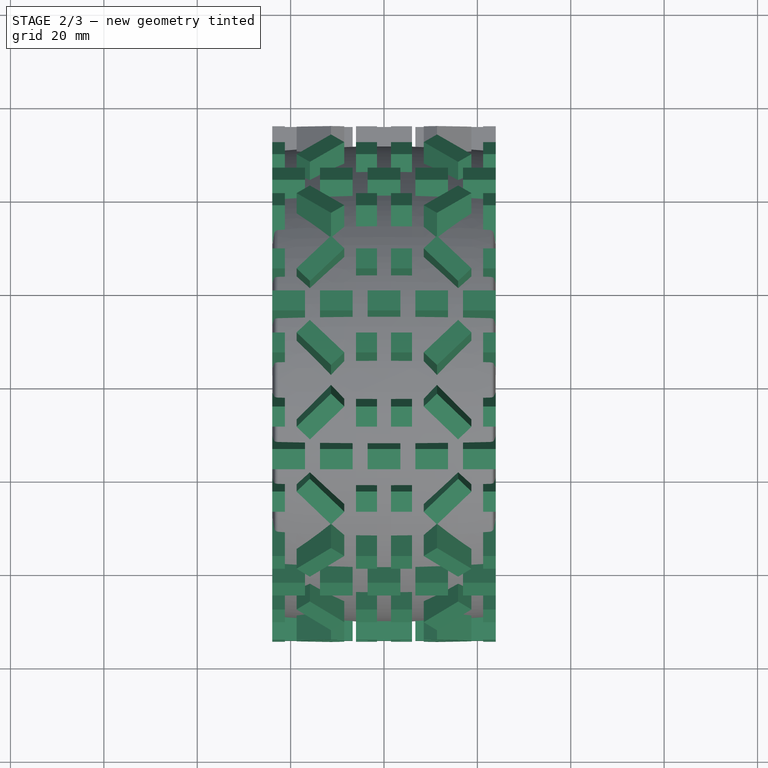
[diagram: stage 2 of 3 — top view after this stage's code; geometry added in this stage tinted green]
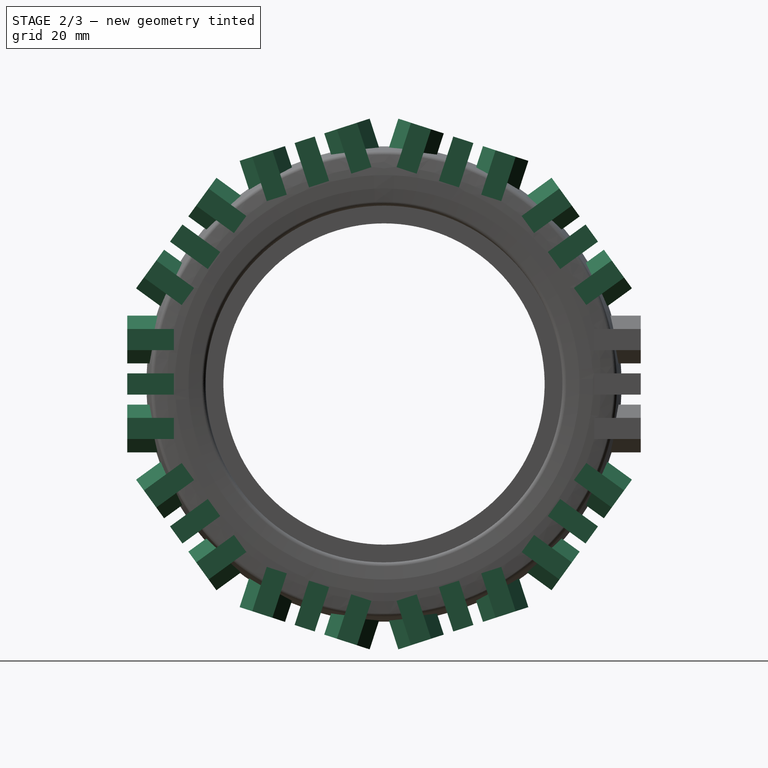
[diagram: stage 2 of 3 — right view after this stage's code; geometry added in this stage tinted green]
FEATURE [PartDesign::PolarPattern] PolarPattern
  Angle = 360
  Axis = -> X_Axis
  BaseFeature = -> Pad
  Occurrences = 10
  Originals = -> [Pad]
  Placement = pos=(0,0,0) rot=(1,0,0;1.5708rad)
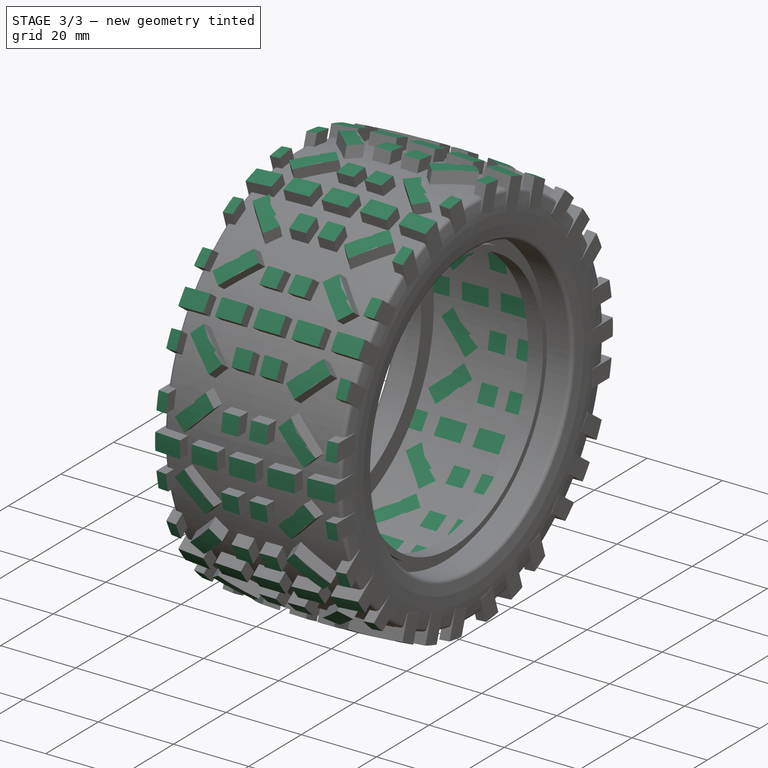
[diagram: stage 3 of 3 — iso view after this stage's code; geometry added in this stage tinted green]
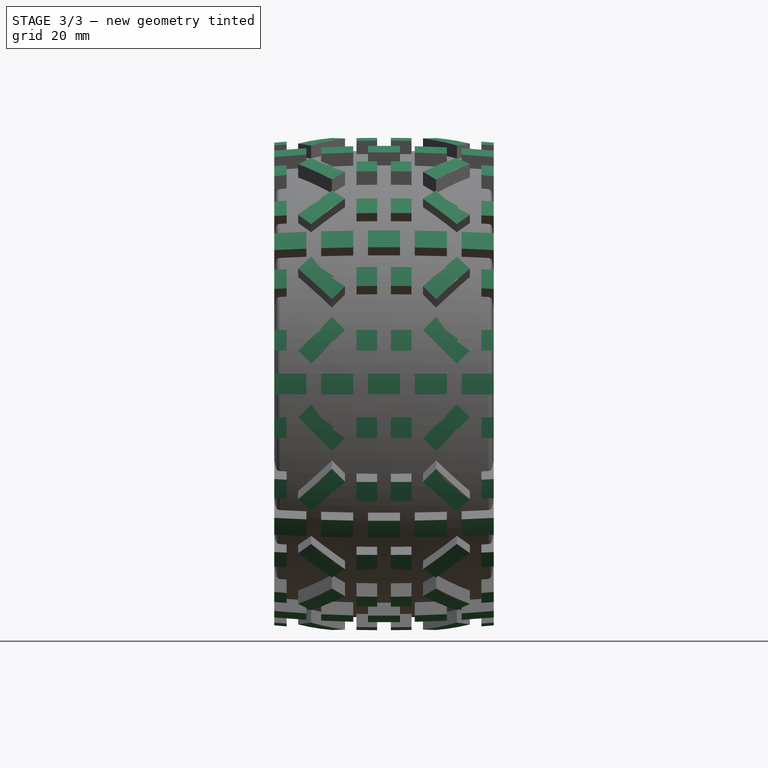
[diagram: stage 3 of 3 — front view after this stage's code; geometry added in this stage tinted green]
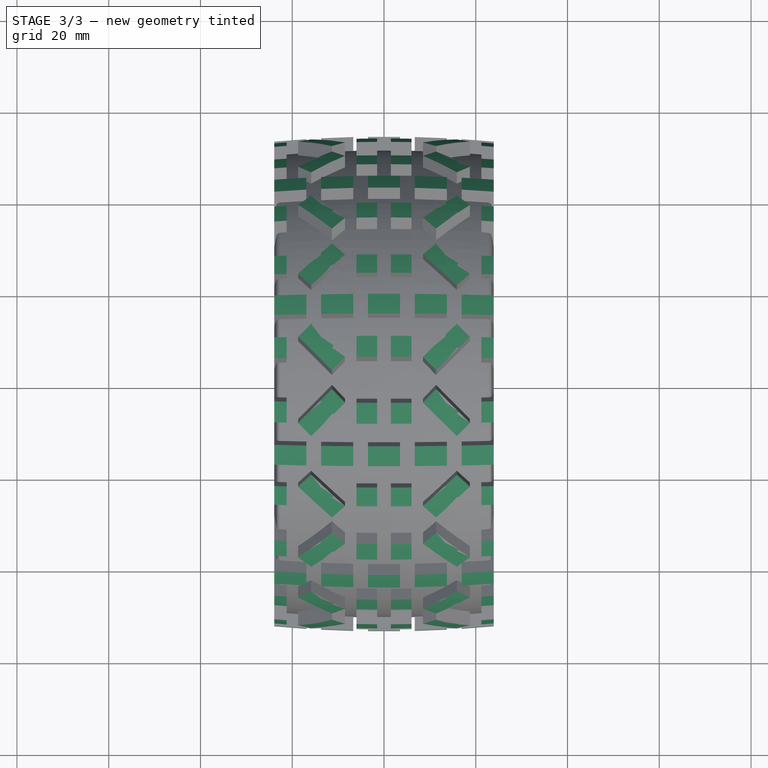
[diagram: stage 3 of 3 — top view after this stage's code; geometry added in this stage tinted green]
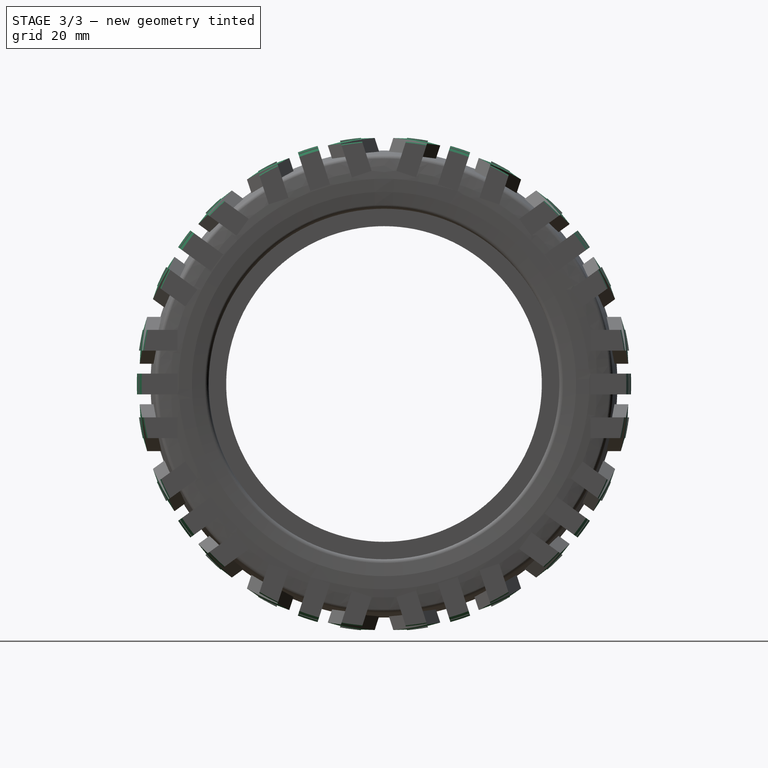
[diagram: stage 3 of 3 — right view after this stage's code; geometry added in this stage tinted green]
FEATURE [PartDesign::Groove] Groove
  Angle = 360
  Axis = (1,0,0)
  Base = (0,0,0)
  BaseFeature = -> PolarPattern
  Placement = pos=(0,0,0) rot=(1,0,0;1.5708rad)
  Profile = -> Sketch002
  ReferenceAxis = -> X_Axis
FEATURE [PartDesign::Groove] Groove001
  Angle = 360
  Axis = (1,0,0)
  Base = (0,0,0)
  BaseFeature = -> Groove
  Placement = pos=(0,0,0) rot=(1,0,0;1.5708rad)
  Profile = -> Sketch003
  ReferenceAxis = -> X_Axis
  Reversed = true
FEATURE [PartDesign::Body] Body  label="Tire"
  Group = -> [Sketch,Revolution,Sketch002,Sketch004,Pad,PolarPattern,Groove,Sketch003,Groove001]
  Origin = -> Origin
  Tip = -> Groove001
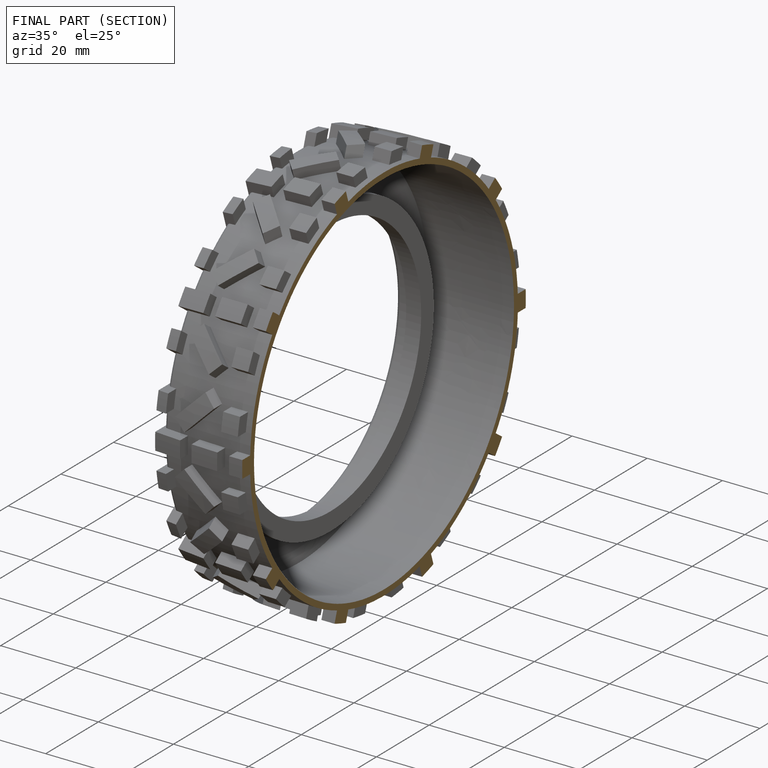
[diagram: finished part — half-section view (interior)]
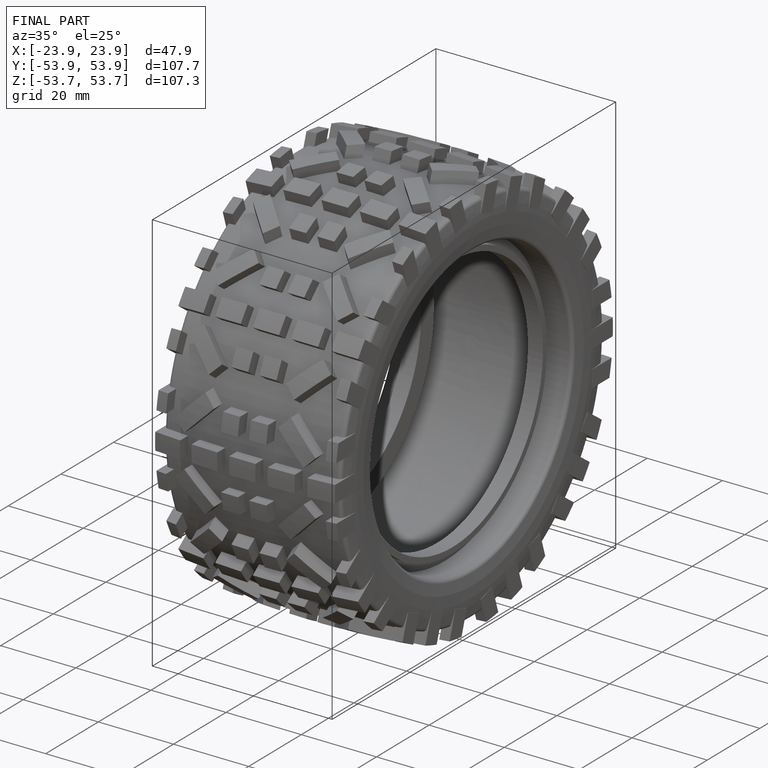
[diagram: finished part — iso view with bounding-box wireframe]
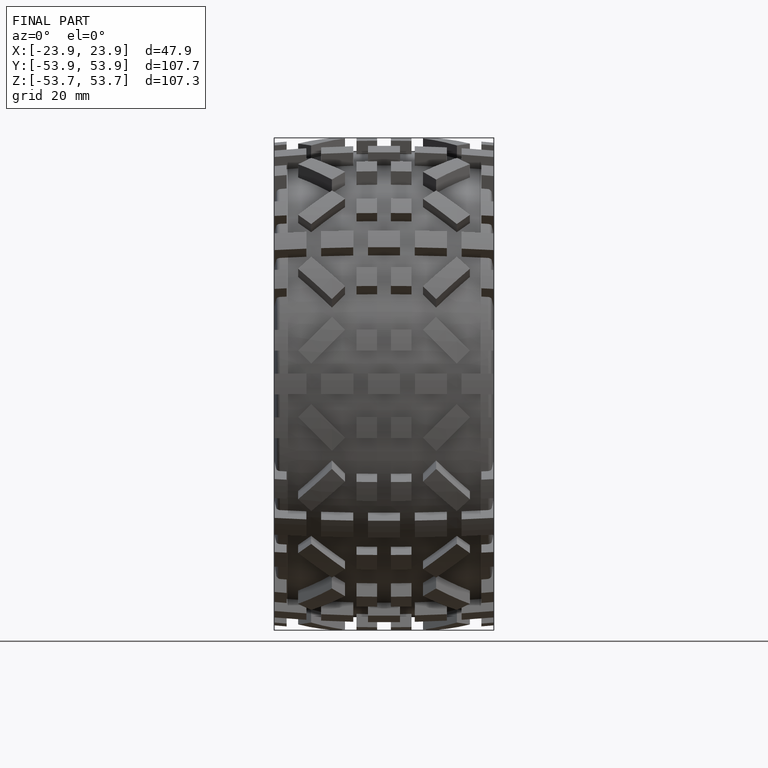
[diagram: finished part — front view with bounding-box wireframe]
